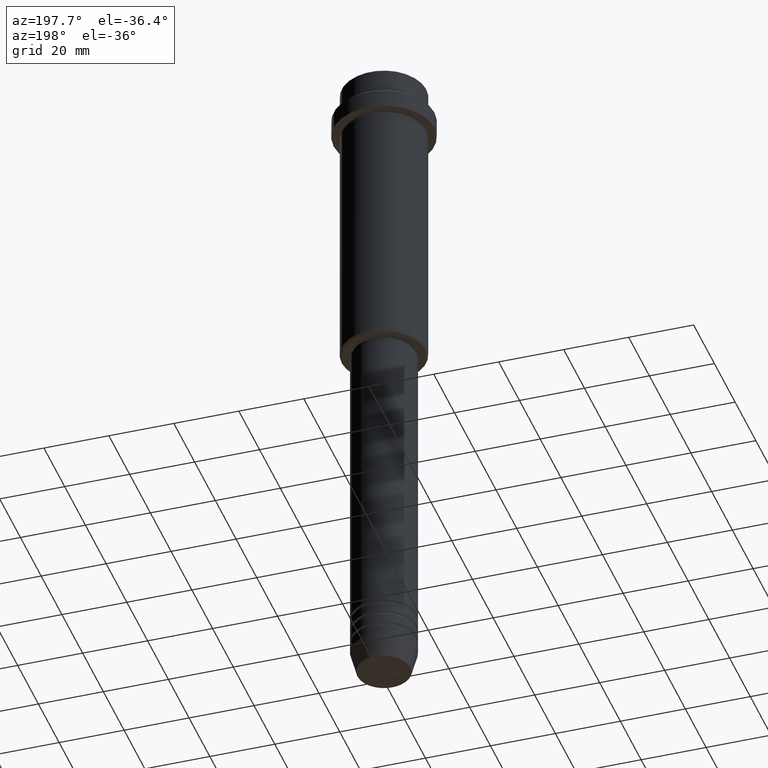
[diagram: clean part render]
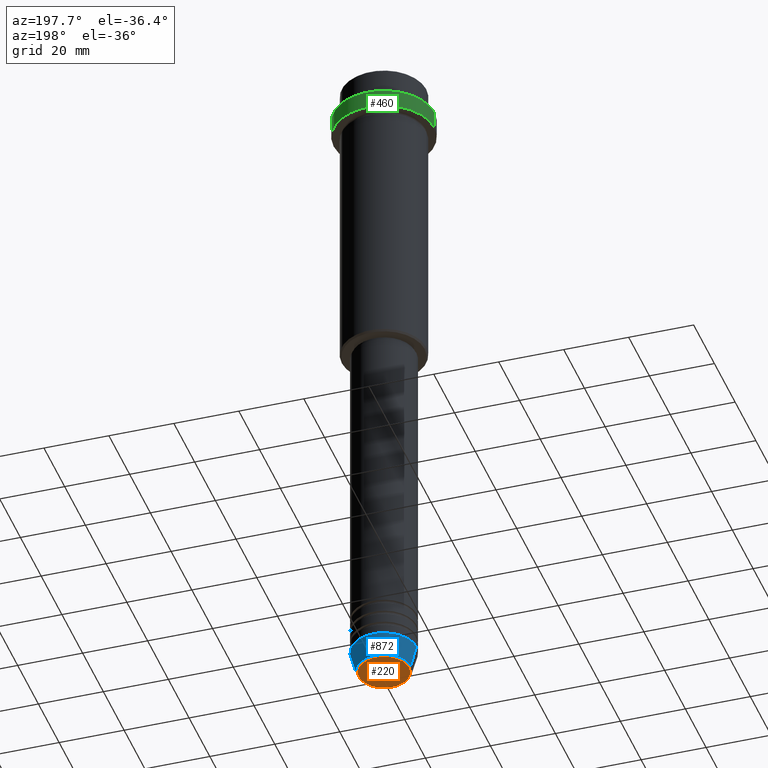
[diagram: same view with three faces highlighted in distinct colors, each labeled with its STEP entity id]
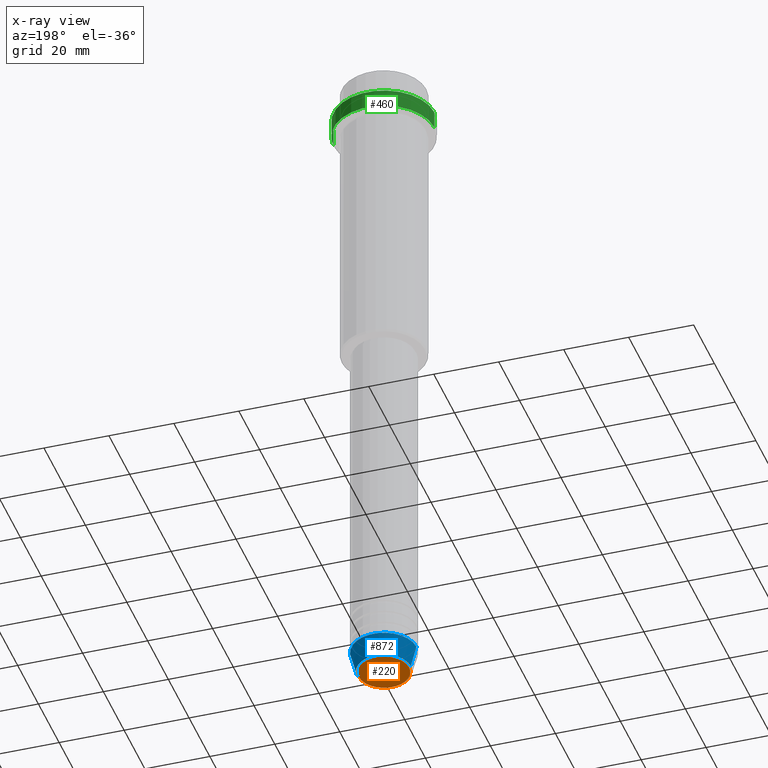
[diagram: x-ray of the same camera — body ghosted, the three highlighted faces saturated]
A machine part, auxiliary view with three faces highlighted in distinct colors.
The next image is the same camera in x-ray (body ghosted, the three faces saturated) — at least one of them is partly hidden behind the body in this view.
Their STEP definitions:

[orange] entity #220 — the highlighted planar face has unit normal (0, -0, 1).
#34 = CIRCLE ( 'NONE', #1359, 7.740692158992664496 ) ;
#38 = DIRECTION ( 'NONE',  ( 1.000000000000000000, 0.000000000000000000, 0.000000000000000000 ) ) ;
#91 = DIRECTION ( 'NONE',  ( 0.000000000000000000, 0.000000000000000000, -1.000000000000000000 ) ) ;
#92 = CARTESIAN_POINT ( 'NONE',  ( -7.740692158992664496, 9.775343368540045052E-16, -210.0000000000000284 ) ) ;
#113 = DIRECTION ( 'NONE',  ( 1.000000000000000000, 0.000000000000000000, 0.000000000000000000 ) ) ;
#162 = EDGE_LOOP ( 'NONE', ( #788, #993 ) ) ;
#220 = ADVANCED_FACE ( 'NONE', ( #982 ), #322, .F. ) ;
#322 = PLANE ( 'NONE',  #423 ) ;
#423 = AXIS2_PLACEMENT_3D ( 'NONE', #663, #1094, #113 ) ;
#430 = DIRECTION ( 'NONE',  ( 1.000000000000000000, 0.000000000000000000, 0.000000000000000000 ) ) ;
#507 = VERTEX_POINT ( 'NONE', #799 ) ;
#663 = CARTESIAN_POINT ( 'NONE',  ( 0.000000000000000000, 0.000000000000000000, -210.0000000000000284 ) ) ;
#692 = CARTESIAN_POINT ( 'NONE',  ( 0.000000000000000000, 0.000000000000000000, -210.0000000000000284 ) ) ;
#788 = ORIENTED_EDGE ( 'NONE', *, *, #1073, .T. ) ;
#799 = CARTESIAN_POINT ( 'NONE',  ( 7.740692158992664496, 0.000000000000000000, -210.0000000000000284 ) ) ;
#808 = EDGE_CURVE ( 'NONE', #1382, #507, #841, .T. ) ;
#841 = CIRCLE ( 'NONE', #1287, 7.740692158992664496 ) ;
#982 = FACE_OUTER_BOUND ( 'NONE', #162, .T. ) ;
#993 = ORIENTED_EDGE ( 'NONE', *, *, #808, .T. ) ;
#1015 = DIRECTION ( 'NONE',  ( 0.000000000000000000, 0.000000000000000000, -1.000000000000000000 ) ) ;
#1073 = EDGE_CURVE ( 'NONE', #507, #1382, #34, .T. ) ;
#1094 = DIRECTION ( 'NONE',  ( 0.000000000000000000, -0.000000000000000000, 1.000000000000000000 ) ) ;
#1287 = AXIS2_PLACEMENT_3D ( 'NONE', #1409, #91, #430 ) ;
#1359 = AXIS2_PLACEMENT_3D ( 'NONE', #692, #1015, #38 ) ;
#1382 = VERTEX_POINT ( 'NONE', #92 ) ;
#1409 = CARTESIAN_POINT ( 'NONE',  ( 0.000000000000000000, 0.000000000000000000, -210.0000000000000284 ) ) ;

[blue] entity #872 — the highlighted conical surface has half-angle 15 deg.
#20 = ORIENTED_EDGE ( 'NONE', *, *, #503, .T. ) ;
#100 = FACE_OUTER_BOUND ( 'NONE', #1101, .T. ) ;
#102 = DIRECTION ( 'NONE',  ( -0.000000000000000000, -0.000000000000000000, 1.000000000000000000 ) ) ;
#107 = CIRCLE ( 'NONE', #1272, 8.223655072137193045 ) ;
#140 = CARTESIAN_POINT ( 'NONE',  ( -10.00000000000000000, 1.224646799147353256E-15, -203.0000000000000000 ) ) ;
#190 = CARTESIAN_POINT ( 'NONE',  ( 0.000000000000000000, 0.000000000000000000, -203.0000000000000000 ) ) ;
#194 = CARTESIAN_POINT ( 'NONE',  ( 8.223655072137193045, 0.000000000000000000, -209.6294095225512990 ) ) ;
#197 = DIRECTION ( 'NONE',  ( 1.000000000000000000, 0.000000000000000000, 0.000000000000000000 ) ) ;
#200 = ORIENTED_EDGE ( 'NONE', *, *, #206, .T. ) ;
#206 = EDGE_CURVE ( 'NONE', #804, #289, #207, .T. ) ;
#207 = LINE ( 'NONE', #650, #1335 ) ;
#259 = CARTESIAN_POINT ( 'NONE',  ( 0.000000000000000000, 0.000000000000000000, -203.0000000000000000 ) ) ;
#289 = VERTEX_POINT ( 'NONE', #140 ) ;
#300 = EDGE_CURVE ( 'NONE', #1343, #289, #794, .T. ) ;
#503 = EDGE_CURVE ( 'NONE', #1397, #804, #107, .T. ) ;
#535 = CONICAL_SURFACE ( 'NONE', #1383, 10.00000000000000000, 0.2617993877991491303 ) ;
#540 = DIRECTION ( 'NONE',  ( 1.000000000000000000, 0.000000000000000000, 0.000000000000000000 ) ) ;
#543 = DIRECTION ( 'NONE',  ( -0.2588190451025205174, 3.169619151431761243E-17, 0.9659258262890684232 ) ) ;
#650 = CARTESIAN_POINT ( 'NONE',  ( -10.00000000000000000, 1.224646799147353256E-15, -203.0000000000000000 ) ) ;
#695 = DIRECTION ( 'NONE',  ( 1.000000000000000000, 0.000000000000000000, 0.000000000000000000 ) ) ;
#697 = CARTESIAN_POINT ( 'NONE',  ( 10.00000000000000000, 0.000000000000000000, -203.0000000000000000 ) ) ;
#707 = LINE ( 'NONE', #697, #1199 ) ;
#745 = AXIS2_PLACEMENT_3D ( 'NONE', #259, #1146, #695 ) ;
#794 = CIRCLE ( 'NONE', #745, 10.00000000000000000 ) ;
#804 = VERTEX_POINT ( 'NONE', #1268 ) ;
#852 = ORIENTED_EDGE ( 'NONE', *, *, #1238, .F. ) ;
#872 = ADVANCED_FACE ( 'NONE', ( #100 ), #535, .T. ) ;
#929 = ORIENTED_EDGE ( 'NONE', *, *, #300, .F. ) ;
#969 = CARTESIAN_POINT ( 'NONE',  ( 0.000000000000000000, 0.000000000000000000, -209.6294095225512990 ) ) ;
#1028 = DIRECTION ( 'NONE',  ( 0.2588190451025205174, 0.000000000000000000, 0.9659258262890684232 ) ) ;
#1070 = DIRECTION ( 'NONE',  ( -0.000000000000000000, -0.000000000000000000, 1.000000000000000000 ) ) ;
#1101 = EDGE_LOOP ( 'NONE', ( #20, #200, #929, #852 ) ) ;
#1146 = DIRECTION ( 'NONE',  ( -0.000000000000000000, -0.000000000000000000, 1.000000000000000000 ) ) ;
#1199 = VECTOR ( 'NONE', #1028, 1000.000000000000114 ) ;
#1238 = EDGE_CURVE ( 'NONE', #1397, #1343, #707, .T. ) ;
#1268 = CARTESIAN_POINT ( 'NONE',  ( -8.223655072137193045, 1.115877042642912251E-15, -209.6294095225512990 ) ) ;
#1272 = AXIS2_PLACEMENT_3D ( 'NONE', #969, #102, #540 ) ;
#1283 = CARTESIAN_POINT ( 'NONE',  ( 10.00000000000000000, 0.000000000000000000, -203.0000000000000000 ) ) ;
#1335 = VECTOR ( 'NONE', #543, 1000.000000000000114 ) ;
#1343 = VERTEX_POINT ( 'NONE', #1283 ) ;
#1383 = AXIS2_PLACEMENT_3D ( 'NONE', #190, #1070, #197 ) ;
#1397 = VERTEX_POINT ( 'NONE', #194 ) ;

[green] entity #460 — the highlighted cylindrical surface (partial cylindrical patch) has radius 15.5 mm, axis along (-0, -0, 1).
#96 = FACE_OUTER_BOUND ( 'NONE', #224, .T. ) ;
#111 = CARTESIAN_POINT ( 'NONE',  ( -15.50000000000000000, 1.898202538678397557E-15, -9.500000000000014211 ) ) ;
#130 = EDGE_CURVE ( 'NONE', #588, #774, #674, .T. ) ;
#132 = CARTESIAN_POINT ( 'NONE',  ( 0.000000000000000000, 0.000000000000000000, -9.500000000000014211 ) ) ;
#138 = DIRECTION ( 'NONE',  ( 0.000000000000000000, 0.000000000000000000, -1.000000000000000000 ) ) ;
#145 = EDGE_CURVE ( 'NONE', #809, #830, #216, .T. ) ;
#174 = AXIS2_PLACEMENT_3D ( 'NONE', #132, #138, #1339 ) ;
#216 = LINE ( 'NONE', #1413, #329 ) ;
#221 = DIRECTION ( 'NONE',  ( -0.000000000000000000, -0.000000000000000000, 1.000000000000000000 ) ) ;
#224 = EDGE_LOOP ( 'NONE', ( #924, #435, #376, #988 ) ) ;
#329 = VECTOR ( 'NONE', #555, 1000.000000000000000 ) ;
#371 = CARTESIAN_POINT ( 'NONE',  ( 15.50000000000000000, 0.000000000000000000, -9.500000000000014211 ) ) ;
#376 = ORIENTED_EDGE ( 'NONE', *, *, #532, .T. ) ;
#435 = ORIENTED_EDGE ( 'NONE', *, *, #145, .T. ) ;
#460 = ADVANCED_FACE ( 'NONE', ( #96 ), #531, .T. ) ;
#471 = AXIS2_PLACEMENT_3D ( 'NONE', #1197, #985, #659 ) ;
#531 = CYLINDRICAL_SURFACE ( 'NONE', #471, 15.50000000000000000 ) ;
#532 = EDGE_CURVE ( 'NONE', #830, #774, #977, .T. ) ;
#555 = DIRECTION ( 'NONE',  ( -0.000000000000000000, -0.000000000000000000, 1.000000000000000000 ) ) ;
#588 = VERTEX_POINT ( 'NONE', #1213 ) ;
#641 = DIRECTION ( 'NONE',  ( -0.000000000000000000, -0.000000000000000000, 1.000000000000000000 ) ) ;
#647 = CARTESIAN_POINT ( 'NONE',  ( -15.50000000000000000, 1.898202538678397557E-15, -15.00000000000000178 ) ) ;
#659 = DIRECTION ( 'NONE',  ( 1.000000000000000000, 0.000000000000000000, 0.000000000000000000 ) ) ;
#674 = LINE ( 'NONE', #1209, #1179 ) ;
#774 = VERTEX_POINT ( 'NONE', #371 ) ;
#809 = VERTEX_POINT ( 'NONE', #647 ) ;
#813 = CIRCLE ( 'NONE', #949, 15.50000000000000000 ) ;
#830 = VERTEX_POINT ( 'NONE', #111 ) ;
#916 = EDGE_CURVE ( 'NONE', #588, #809, #813, .T. ) ;
#924 = ORIENTED_EDGE ( 'NONE', *, *, #916, .T. ) ;
#949 = AXIS2_PLACEMENT_3D ( 'NONE', #962, #641, #1301 ) ;
#962 = CARTESIAN_POINT ( 'NONE',  ( 0.000000000000000000, 0.000000000000000000, -15.00000000000000178 ) ) ;
#977 = CIRCLE ( 'NONE', #174, 15.50000000000000000 ) ;
#985 = DIRECTION ( 'NONE',  ( -0.000000000000000000, -0.000000000000000000, 1.000000000000000000 ) ) ;
#988 = ORIENTED_EDGE ( 'NONE', *, *, #130, .F. ) ;
#1179 = VECTOR ( 'NONE', #221, 1000.000000000000000 ) ;
#1197 = CARTESIAN_POINT ( 'NONE',  ( 0.000000000000000000, 0.000000000000000000, 0.000000000000000000 ) ) ;
#1209 = CARTESIAN_POINT ( 'NONE',  ( 15.50000000000000000, 0.000000000000000000, 0.000000000000000000 ) ) ;
#1213 = CARTESIAN_POINT ( 'NONE',  ( 15.50000000000000000, 0.000000000000000000, -15.00000000000000178 ) ) ;
#1301 = DIRECTION ( 'NONE',  ( 1.000000000000000000, 0.000000000000000000, 0.000000000000000000 ) ) ;
#1339 = DIRECTION ( 'NONE',  ( 1.000000000000000000, 0.000000000000000000, 0.000000000000000000 ) ) ;
#1413 = CARTESIAN_POINT ( 'NONE',  ( -15.50000000000000000, 1.898202538678397557E-15, 0.000000000000000000 ) ) ;